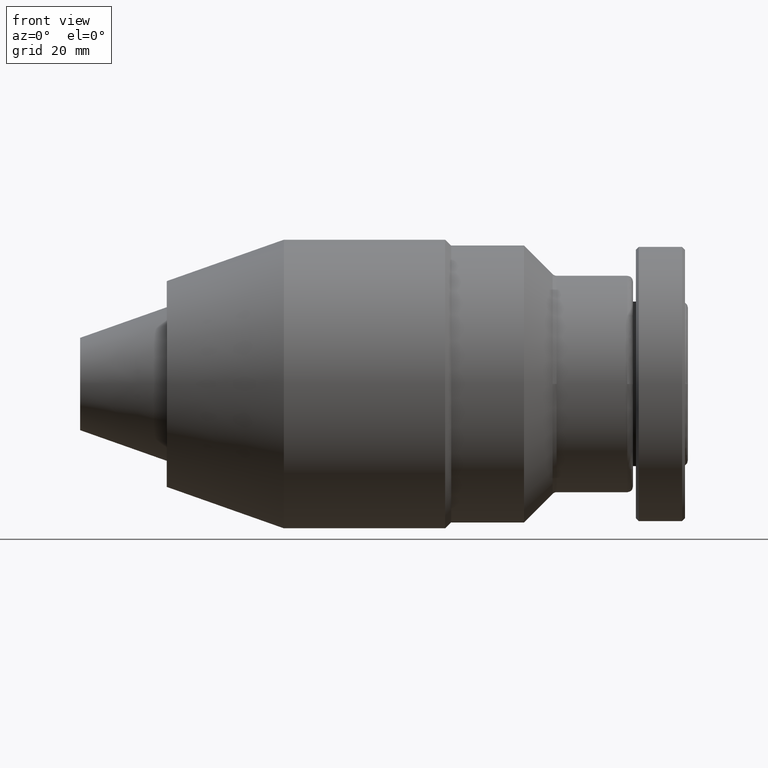
[diagram: clean part render]
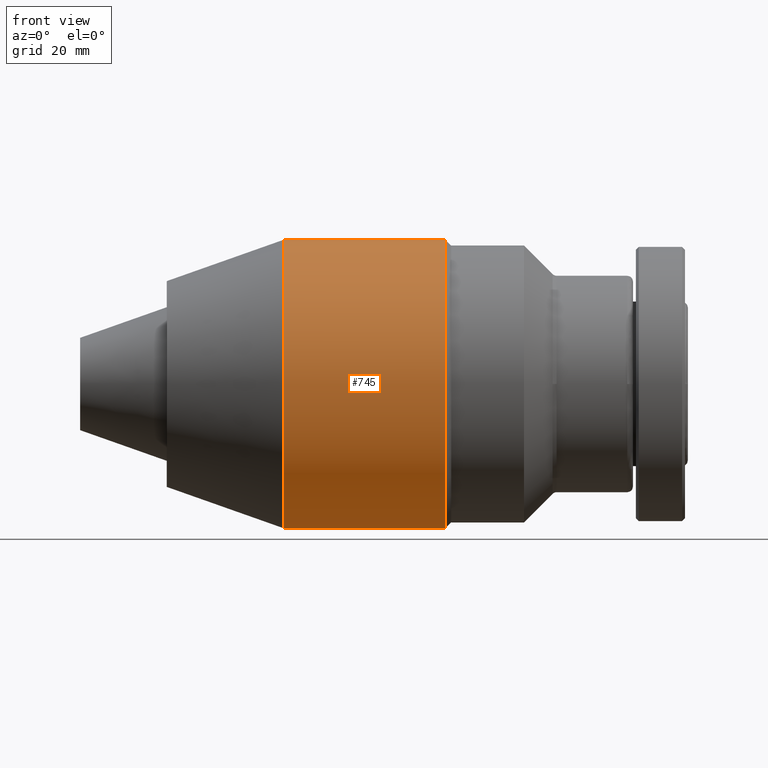
[diagram: same view with one face highlighted and labeled with its STEP entity id]
A machine part, front view. The second image highlights one B-rep face of the part: STEP entity #745.
In plain terms, the highlighted cylindrical surface (partial cylindrical patch) has radius 25 mm, axis along (1, 0, -0).
Its self-contained STEP definition (entity closure, byte-faithful):
#23 = VECTOR ( 'NONE', #1424, 1000.000000000000000 ) ;
#28 = CARTESIAN_POINT ( 'NONE',  ( 35.29439857400000600, 0.0000000000000000000, 0.0000000000000000000 ) ) ;
#37 = CARTESIAN_POINT ( 'NONE',  ( 35.29439857400000600, 3.061616997868383000E-015, 25.00000000000000000 ) ) ;
#95 = ORIENTED_EDGE ( 'NONE', *, *, #347, .T. ) ;
#130 = ORIENTED_EDGE ( 'NONE', *, *, #446, .F. ) ;
#138 = VERTEX_POINT ( 'NONE', #757 ) ;
#142 = CIRCLE ( 'NONE', #236, 25.00000000000000000 ) ;
#198 = DIRECTION ( 'NONE',  ( 0.0000000000000000000, 1.000000000000000000, 0.0000000000000000000 ) ) ;
#236 = AXIS2_PLACEMENT_3D ( 'NONE', #28, #661, #198 ) ;
#309 = DIRECTION ( 'NONE',  ( 1.000000000000000000, 0.0000000000000000000, -0.0000000000000000000 ) ) ;
#343 = FACE_OUTER_BOUND ( 'NONE', #685, .T. ) ;
#347 = EDGE_CURVE ( 'NONE', #1225, #1204, #680, .T. ) ;
#381 = LINE ( 'NONE', #794, #1289 ) ;
#435 = CARTESIAN_POINT ( 'NONE',  ( 35.29439857400000600, 3.061616997868383000E-015, 25.00000000000000000 ) ) ;
#446 = EDGE_CURVE ( 'NONE', #138, #967, #142, .T. ) ;
#475 = DIRECTION ( 'NONE',  ( -1.110223024625156500E-015, -1.000000000000000000, 0.0000000000000000000 ) ) ;
#476 = AXIS2_PLACEMENT_3D ( 'NONE', #498, #1099, #475 ) ;
#498 = CARTESIAN_POINT ( 'NONE',  ( 63.25000000000002800, 0.0000000000000000000, 0.0000000000000000000 ) ) ;
#632 = EDGE_CURVE ( 'NONE', #138, #1225, #381, .T. ) ;
#651 = AXIS2_PLACEMENT_3D ( 'NONE', #652, #766, #1157 ) ;
#652 = CARTESIAN_POINT ( 'NONE',  ( 35.29439857400000600, 0.0000000000000000000, 0.0000000000000000000 ) ) ;
#661 = DIRECTION ( 'NONE',  ( -1.000000000000000000, -0.0000000000000000000, -0.0000000000000000000 ) ) ;
#680 = CIRCLE ( 'NONE', #476, 25.00000000000000000 ) ;
#685 = EDGE_LOOP ( 'NONE', ( #1049, #130, #763, #95 ) ) ;
#745 = ADVANCED_FACE ( 'NONE', ( #343 ), #1520, .T. ) ;
#757 = CARTESIAN_POINT ( 'NONE',  ( 35.29439857400000600, 0.0000000000000000000, -25.00000000000000000 ) ) ;
#763 = ORIENTED_EDGE ( 'NONE', *, *, #632, .T. ) ;
#766 = DIRECTION ( 'NONE',  ( 1.000000000000000000, 0.0000000000000000000, -0.0000000000000000000 ) ) ;
#794 = CARTESIAN_POINT ( 'NONE',  ( 35.29439857400000600, 0.0000000000000000000, -25.00000000000000000 ) ) ;
#967 = VERTEX_POINT ( 'NONE', #435 ) ;
#1011 = LINE ( 'NONE', #37, #23 ) ;
#1049 = ORIENTED_EDGE ( 'NONE', *, *, #1548, .F. ) ;
#1099 = DIRECTION ( 'NONE',  ( -1.000000000000000000, 0.0000000000000000000, 0.0000000000000000000 ) ) ;
#1157 = DIRECTION ( 'NONE',  ( 0.0000000000000000000, 0.0000000000000000000, -1.000000000000000000 ) ) ;
#1204 = VERTEX_POINT ( 'NONE', #1458 ) ;
#1225 = VERTEX_POINT ( 'NONE', #1588 ) ;
#1289 = VECTOR ( 'NONE', #309, 1000.000000000000000 ) ;
#1424 = DIRECTION ( 'NONE',  ( 1.000000000000000000, 0.0000000000000000000, -0.0000000000000000000 ) ) ;
#1458 = CARTESIAN_POINT ( 'NONE',  ( 63.25000000000002800, 3.061616997868383000E-015, 25.00000000000000000 ) ) ;
#1520 = CYLINDRICAL_SURFACE ( 'NONE', #651, 25.00000000000000000 ) ;
#1548 = EDGE_CURVE ( 'NONE', #967, #1204, #1011, .T. ) ;
#1588 = CARTESIAN_POINT ( 'NONE',  ( 63.25000000000002800, 0.0000000000000000000, -25.00000000000000000 ) ) ;